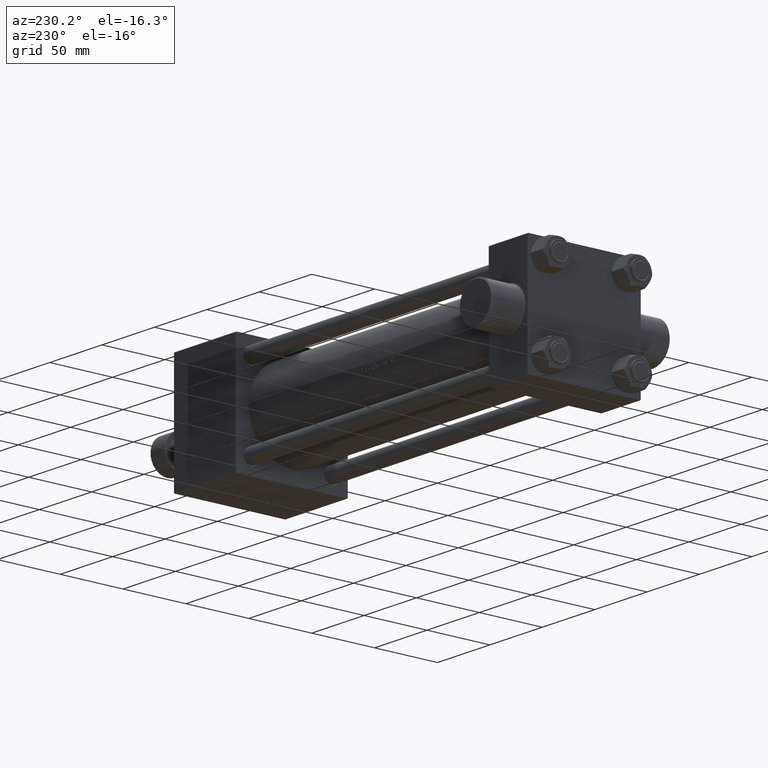
[diagram: clean part render]
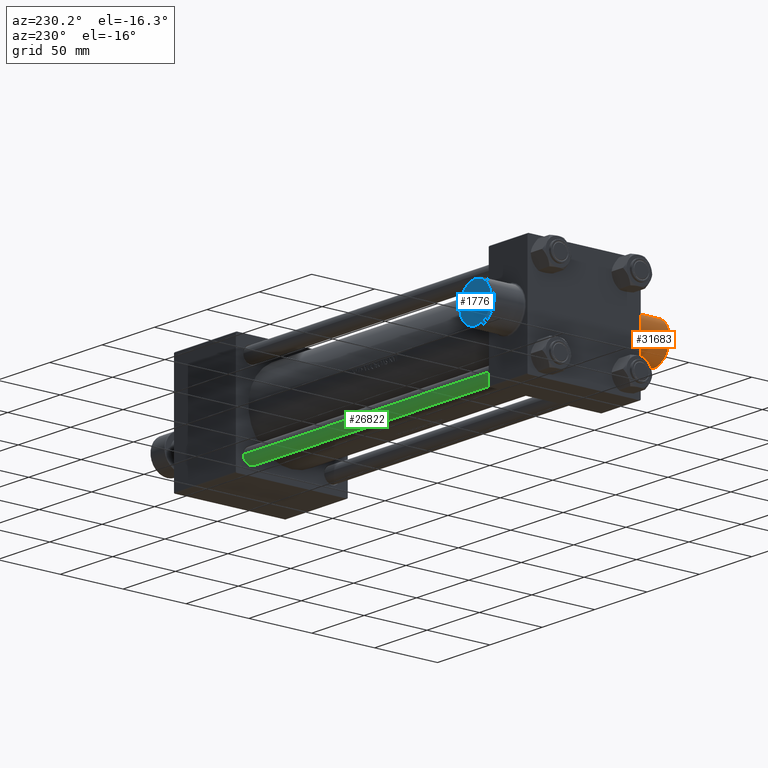
[diagram: same view with three faces highlighted in distinct colors, each labeled with its STEP entity id]
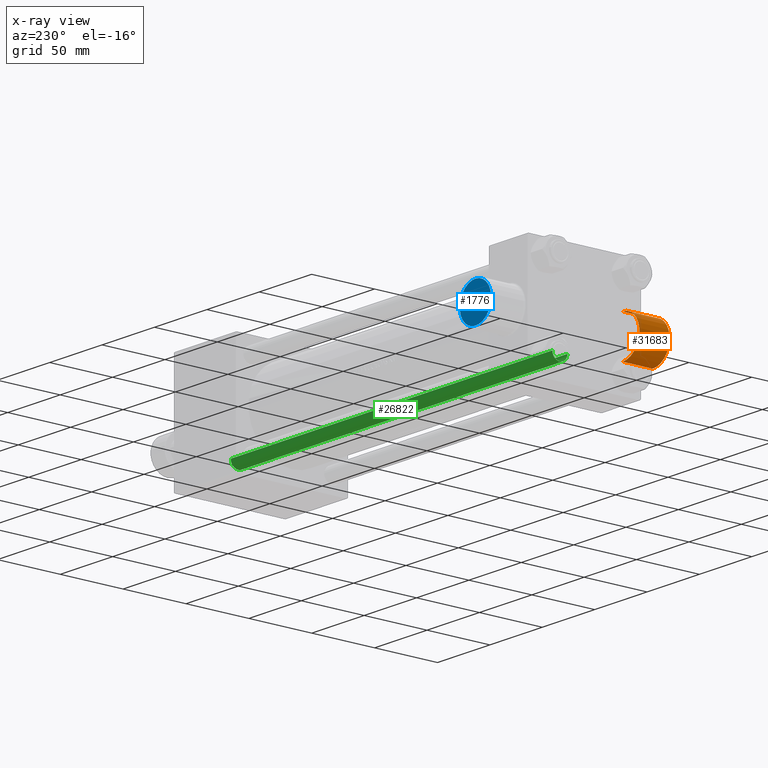
[diagram: x-ray of the same camera — body ghosted, the three highlighted faces saturated]
A machine part, auxiliary view with three faces highlighted in distinct colors.
The next image is the same camera in x-ray (body ghosted, the three faces saturated) — at least one of them is partly hidden behind the body in this view.
Their STEP definitions:

[orange] entity #31683 — the highlighted cylindrical surface (edge-blend (fillet) strip) has radius 16 mm, axis along (0, 1, 0).
#2388 = CARTESIAN_POINT ( 'NONE',  ( 18.50000000000000000, -46.00000000000000000, 16.00000000000000355 ) ) ;
#2623 = DIRECTION ( 'NONE',  ( -0.000000000000000000, 1.000000000000000000, 8.673617379884036705E-17 ) ) ;
#2711 = DIRECTION ( 'NONE',  ( 0.000000000000000000, 0.000000000000000000, 1.000000000000000000 ) ) ;
#2811 = ORIENTED_EDGE ( 'NONE', *, *, #13683, .T. ) ;
#5907 = DIRECTION ( 'NONE',  ( 0.000000000000000000, 0.000000000000000000, 1.000000000000000000 ) ) ;
#6267 = CYLINDRICAL_SURFACE ( 'NONE', #25212, 16.00000000000000711 ) ;
#6665 = EDGE_LOOP ( 'NONE', ( #21763, #19492, #2811, #18286 ) ) ;
#8978 = LINE ( 'NONE', #37821, #25285 ) ;
#10157 = AXIS2_PLACEMENT_3D ( 'NONE', #31688, #25039, #35915 ) ;
#10923 = CIRCLE ( 'NONE', #10157, 16.00000000000000711 ) ;
#11447 = VERTEX_POINT ( 'NONE', #12404 ) ;
#12404 = CARTESIAN_POINT ( 'NONE',  ( 18.50000000000000000, -46.00000000000000000, 16.00000000000000355 ) ) ;
#13683 = EDGE_CURVE ( 'NONE', #37730, #11447, #34778, .T. ) ;
#13937 = CARTESIAN_POINT ( 'NONE',  ( 18.50000000000000000, -70.00000000000005684, 16.00000000000000000 ) ) ;
#16902 = FACE_OUTER_BOUND ( 'NONE', #6665, .T. ) ;
#17590 = AXIS2_PLACEMENT_3D ( 'NONE', #20797, #38284, #5907 ) ;
#18286 = ORIENTED_EDGE ( 'NONE', *, *, #30276, .T. ) ;
#19492 = ORIENTED_EDGE ( 'NONE', *, *, #34348, .T. ) ;
#20797 = CARTESIAN_POINT ( 'NONE',  ( 18.50000000000000000, -46.00000000000000000, -3.556183125752455332E-15 ) ) ;
#21763 = ORIENTED_EDGE ( 'NONE', *, *, #34238, .F. ) ;
#23668 = CARTESIAN_POINT ( 'NONE',  ( 18.50000000000000355, -46.00000000000000000, -16.00000000000001066 ) ) ;
#24228 = DIRECTION ( 'NONE',  ( -0.000000000000000000, 1.000000000000000000, 8.673617379884036705E-17 ) ) ;
#25039 = DIRECTION ( 'NONE',  ( 0.000000000000000000, 1.000000000000000000, 8.673617379884015751E-17 ) ) ;
#25212 = AXIS2_PLACEMENT_3D ( 'NONE', #35100, #24228, #2711 ) ;
#25285 = VECTOR ( 'NONE', #42540, 1000.000000000000000 ) ;
#30276 = EDGE_CURVE ( 'NONE', #11447, #40338, #37968, .T. ) ;
#31683 = ADVANCED_FACE ( 'NONE', ( #16902 ), #6267, .T. ) ;
#31688 = CARTESIAN_POINT ( 'NONE',  ( 18.50000000000000000, -70.00000000000005684, -5.637851296924629368E-15 ) ) ;
#32002 = VERTEX_POINT ( 'NONE', #38532 ) ;
#34238 = EDGE_CURVE ( 'NONE', #32002, #40338, #8978, .T. ) ;
#34348 = EDGE_CURVE ( 'NONE', #32002, #37730, #10923, .T. ) ;
#34778 = LINE ( 'NONE', #2388, #44724 ) ;
#35100 = CARTESIAN_POINT ( 'NONE',  ( 18.50000000000000000, -46.00000000000000000, -3.556183125752455332E-15 ) ) ;
#35915 = DIRECTION ( 'NONE',  ( 0.000000000000000000, 0.000000000000000000, -1.000000000000000000 ) ) ;
#37730 = VERTEX_POINT ( 'NONE', #13937 ) ;
#37821 = CARTESIAN_POINT ( 'NONE',  ( 18.50000000000000355, -46.00000000000000000, -16.00000000000001066 ) ) ;
#37968 = CIRCLE ( 'NONE', #17590, 16.00000000000000711 ) ;
#38284 = DIRECTION ( 'NONE',  ( 0.000000000000000000, -1.000000000000000000, -7.709882115452478166E-17 ) ) ;
#38532 = CARTESIAN_POINT ( 'NONE',  ( 18.50000000000000355, -70.00000000000005684, -16.00000000000001421 ) ) ;
#40338 = VERTEX_POINT ( 'NONE', #23668 ) ;
#42540 = DIRECTION ( 'NONE',  ( -0.000000000000000000, 1.000000000000000000, 8.673617379884036705E-17 ) ) ;
#44724 = VECTOR ( 'NONE', #2623, 1000.000000000000000 ) ;

[blue] entity #1776 — the highlighted planar face has unit normal (0, 1, -0).
#456 = DIRECTION ( 'NONE',  ( 0.000000000000000000, 0.000000000000000000, 1.000000000000000000 ) ) ;
#939 = CIRCLE ( 'NONE', #37220, 14.99999999999995381 ) ;
#1776 = ADVANCED_FACE ( 'NONE', ( #31793 ), #13802, .T. ) ;
#3165 = DIRECTION ( 'NONE',  ( 0.000000000000000000, 1.000000000000000000, -8.673617379884036705E-17 ) ) ;
#4484 = AXIS2_PLACEMENT_3D ( 'NONE', #39101, #3165, #44043 ) ;
#4840 = ORIENTED_EDGE ( 'NONE', *, *, #29365, .T. ) ;
#10678 = VERTEX_POINT ( 'NONE', #26723 ) ;
#13802 = PLANE ( 'NONE',  #4484 ) ;
#15464 = VERTEX_POINT ( 'NONE', #16015 ) ;
#15563 = CARTESIAN_POINT ( 'NONE',  ( 18.50000000000000000, 71.00000000000001421, -5.724587470723464989E-15 ) ) ;
#16015 = CARTESIAN_POINT ( 'NONE',  ( 18.50000000000000000, 71.00000000000001421, -14.99999999999995914 ) ) ;
#21173 = DIRECTION ( 'NONE',  ( 0.000000000000000000, 1.000000000000000000, -8.673617379884036705E-17 ) ) ;
#22679 = DIRECTION ( 'NONE',  ( 0.000000000000000000, 1.000000000000000000, -8.673617379884036705E-17 ) ) ;
#22923 = ORIENTED_EDGE ( 'NONE', *, *, #39651, .T. ) ;
#26723 = CARTESIAN_POINT ( 'NONE',  ( 18.50000000000000355, 71.00000000000001421, 14.99999999999994849 ) ) ;
#28359 = AXIS2_PLACEMENT_3D ( 'NONE', #15563, #22679, #456 ) ;
#29365 = EDGE_CURVE ( 'NONE', #10678, #15464, #939, .T. ) ;
#31793 = FACE_OUTER_BOUND ( 'NONE', #33047, .T. ) ;
#33047 = EDGE_LOOP ( 'NONE', ( #22923, #4840 ) ) ;
#36047 = CARTESIAN_POINT ( 'NONE',  ( 18.50000000000000000, 71.00000000000001421, -5.724587470723464989E-15 ) ) ;
#37220 = AXIS2_PLACEMENT_3D ( 'NONE', #36047, #21173, #42451 ) ;
#39101 = CARTESIAN_POINT ( 'NONE',  ( 18.50000000000000000, 71.00000000000001421, -5.724587470723464989E-15 ) ) ;
#39651 = EDGE_CURVE ( 'NONE', #15464, #10678, #39680, .T. ) ;
#39680 = CIRCLE ( 'NONE', #28359, 14.99999999999995381 ) ;
#42451 = DIRECTION ( 'NONE',  ( 0.000000000000000000, 0.000000000000000000, 1.000000000000000000 ) ) ;
#44043 = DIRECTION ( 'NONE',  ( 0.000000000000000000, -8.673617379884036705E-17, -1.000000000000000000 ) ) ;

[green] entity #26822 — the highlighted cylindrical surface (edge-blend (fillet) strip) has radius 6 mm, axis along (1, 0, 0).
#181 = DIRECTION ( 'NONE',  ( -0.000000000000000000, -0.000000000000000000, -1.000000000000000000 ) ) ;
#1114 = VERTEX_POINT ( 'NONE', #6437 ) ;
#2324 = EDGE_LOOP ( 'NONE', ( #17593, #36899, #31732, #22449 ) ) ;
#2370 = AXIS2_PLACEMENT_3D ( 'NONE', #10578, #181, #3264 ) ;
#3057 = CIRCLE ( 'NONE', #9086, 6.000000000000000888 ) ;
#3264 = DIRECTION ( 'NONE',  ( -1.000000000000000000, 0.000000000000000000, 0.000000000000000000 ) ) ;
#4901 = DIRECTION ( 'NONE',  ( -0.000000000000000000, -0.000000000000000000, -1.000000000000000000 ) ) ;
#6374 = DIRECTION ( 'NONE',  ( -0.000000000000000000, -0.000000000000000000, 1.000000000000000000 ) ) ;
#6437 = CARTESIAN_POINT ( 'NONE',  ( -6.000000000000000888, 0.000000000000000000, 0.5000000000000559552 ) ) ;
#8394 = VECTOR ( 'NONE', #4901, 1000.000000000000000 ) ;
#9086 = AXIS2_PLACEMENT_3D ( 'NONE', #42524, #6374, #31209 ) ;
#9930 = EDGE_CURVE ( 'NONE', #1114, #10419, #3057, .T. ) ;
#10419 = VERTEX_POINT ( 'NONE', #41894 ) ;
#10578 = CARTESIAN_POINT ( 'NONE',  ( 0.000000000000000000, 0.000000000000000000, 308.0000000000000000 ) ) ;
#10953 = LINE ( 'NONE', #21144, #32090 ) ;
#14088 = CARTESIAN_POINT ( 'NONE',  ( 0.000000000000000000, 0.000000000000000000, 307.4999999999999432 ) ) ;
#17593 = ORIENTED_EDGE ( 'NONE', *, *, #20153, .F. ) ;
#19023 = EDGE_CURVE ( 'NONE', #25687, #39234, #23751, .T. ) ;
#20153 = EDGE_CURVE ( 'NONE', #25687, #10419, #10953, .T. ) ;
#21144 = CARTESIAN_POINT ( 'NONE',  ( 6.000000000000000888, 7.347880794884120722E-16, 308.0000000000000000 ) ) ;
#22449 = ORIENTED_EDGE ( 'NONE', *, *, #9930, .T. ) ;
#23751 = CIRCLE ( 'NONE', #44159, 6.000000000000000888 ) ;
#25014 = CARTESIAN_POINT ( 'NONE',  ( -6.000000000000000888, 0.000000000000000000, 308.0000000000000000 ) ) ;
#25687 = VERTEX_POINT ( 'NONE', #38205 ) ;
#26822 = ADVANCED_FACE ( 'NONE', ( #39421 ), #28560, .T. ) ;
#26888 = EDGE_CURVE ( 'NONE', #39234, #1114, #42973, .T. ) ;
#28560 = CYLINDRICAL_SURFACE ( 'NONE', #2370, 6.000000000000000888 ) ;
#28754 = DIRECTION ( 'NONE',  ( 0.000000000000000000, 0.000000000000000000, -1.000000000000000000 ) ) ;
#31209 = DIRECTION ( 'NONE',  ( 1.000000000000000000, 0.000000000000000000, 0.000000000000000000 ) ) ;
#31732 = ORIENTED_EDGE ( 'NONE', *, *, #26888, .T. ) ;
#32090 = VECTOR ( 'NONE', #35326, 1000.000000000000000 ) ;
#32529 = DIRECTION ( 'NONE',  ( 1.000000000000000000, 0.000000000000000000, 0.000000000000000000 ) ) ;
#35326 = DIRECTION ( 'NONE',  ( -0.000000000000000000, -0.000000000000000000, -1.000000000000000000 ) ) ;
#36899 = ORIENTED_EDGE ( 'NONE', *, *, #19023, .T. ) ;
#38205 = CARTESIAN_POINT ( 'NONE',  ( 6.000000000000000888, 7.347880794884120722E-16, 307.4999999999999432 ) ) ;
#39234 = VERTEX_POINT ( 'NONE', #40961 ) ;
#39421 = FACE_OUTER_BOUND ( 'NONE', #2324, .T. ) ;
#40961 = CARTESIAN_POINT ( 'NONE',  ( -6.000000000000000888, 0.000000000000000000, 307.4999999999999432 ) ) ;
#41894 = CARTESIAN_POINT ( 'NONE',  ( 6.000000000000000888, 7.347880794884120722E-16, 0.5000000000000559552 ) ) ;
#42524 = CARTESIAN_POINT ( 'NONE',  ( 0.000000000000000000, 0.000000000000000000, 0.5000000000000559552 ) ) ;
#42973 = LINE ( 'NONE', #25014, #8394 ) ;
#44159 = AXIS2_PLACEMENT_3D ( 'NONE', #14088, #28754, #32529 ) ;